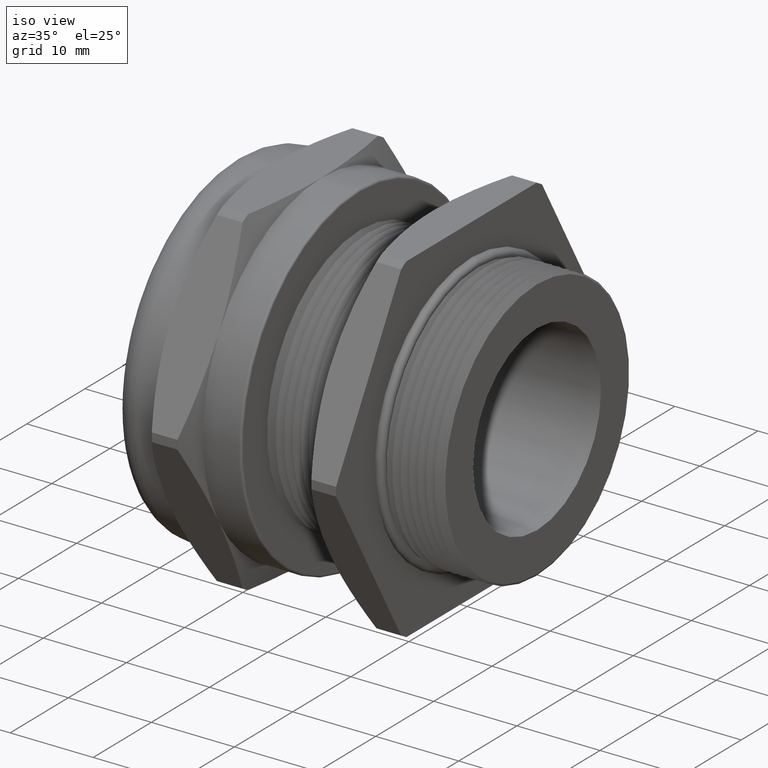
[diagram: clean part render]
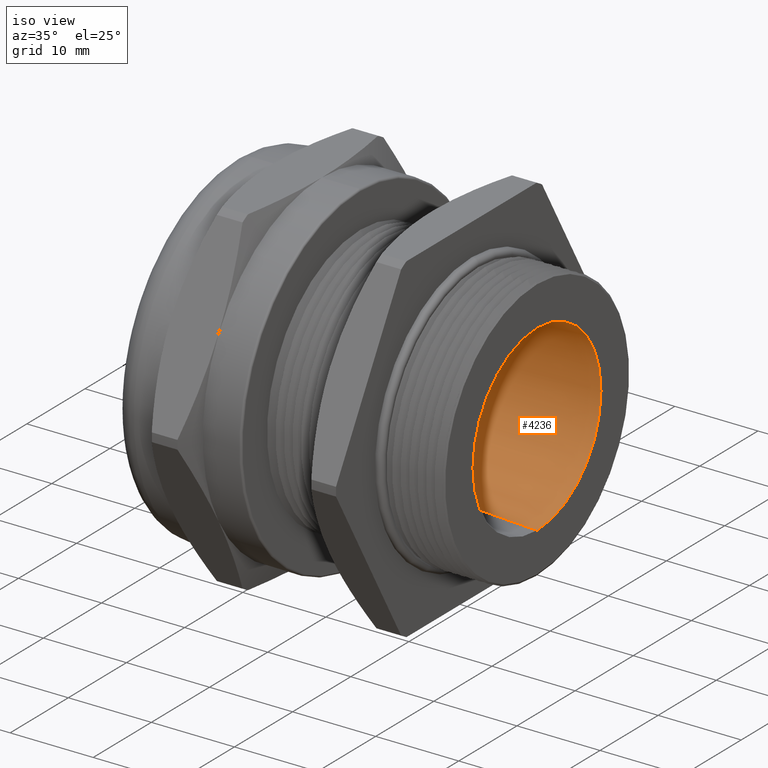
[diagram: same view with one face highlighted and labeled with its STEP entity id]
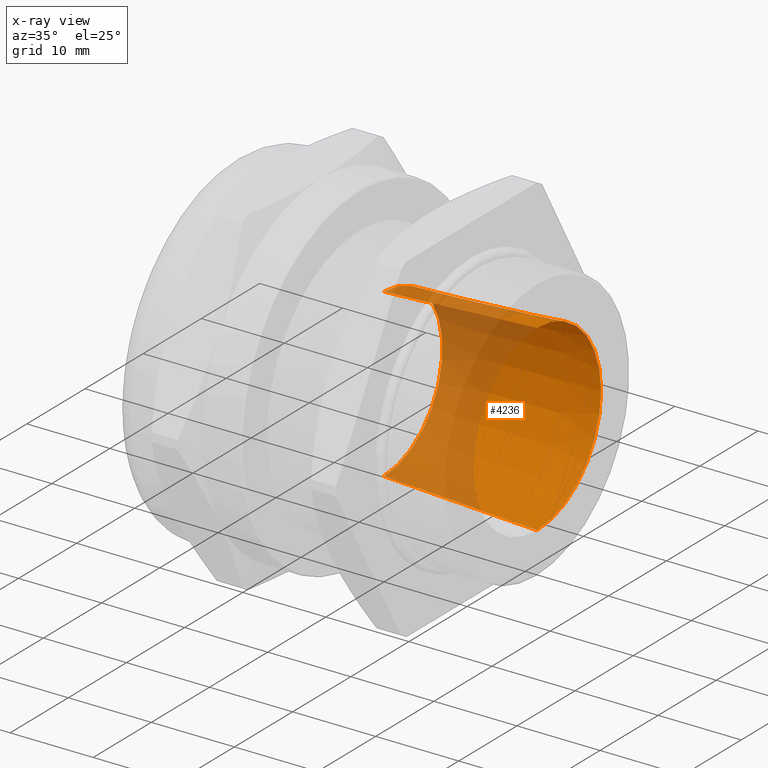
[diagram: x-ray of the same camera — body ghosted, the highlighted face saturated]
A machine part, iso view. The second image highlights one B-rep face of the part: STEP entity #4236.
The next image is the same camera in x-ray: the body ghosted, the highlighted face saturated — about 40% of this face is hidden behind the body in this view.
In plain terms, the highlighted conical surface has half-angle 3 deg.
Its self-contained STEP definition (entity closure, byte-faithful):
#170 = ORIENTED_EDGE ( 'NONE', *, *, #524, .F. ) ;
#179 = ORIENTED_EDGE ( 'NONE', *, *, #1102, .F. ) ;
#180 = ORIENTED_EDGE ( 'NONE', *, *, #181, .T. ) ;
#181 = EDGE_CURVE ( 'NONE', #1145, #1144, #1603, .T. ) ;
#183 = ORIENTED_EDGE ( 'NONE', *, *, #1125, .T. ) ;
#185 = EDGE_LOOP ( 'NONE', ( #179, #180, #183, #170 ) ) ;
#524 = EDGE_CURVE ( 'NONE', #1103, #1106, #2210, .T. ) ;
#1102 = EDGE_CURVE ( 'NONE', #1145, #1103, #3241, .T. ) ;
#1103 = VERTEX_POINT ( 'NONE', #3232 ) ;
#1106 = VERTEX_POINT ( 'NONE', #3291 ) ;
#1125 = EDGE_CURVE ( 'NONE', #1144, #1106, #3318, .T. ) ;
#1144 = VERTEX_POINT ( 'NONE', #3347 ) ;
#1145 = VERTEX_POINT ( 'NONE', #3346 ) ;
#1599 = DIRECTION ( 'NONE',  ( 0.0000000000000000000, 0.0000000000000000000, 1.000000000000000000 ) ) ;
#1600 = DIRECTION ( 'NONE',  ( -1.000000000000000000, 0.0000000000000000000, 0.0000000000000000000 ) ) ;
#1601 = CARTESIAN_POINT ( 'NONE',  ( 0.0000000000000000000, 0.0000000000000000000, 0.0000000000000000000 ) ) ;
#1602 = AXIS2_PLACEMENT_3D ( 'NONE', #1601, #1600, #1599 ) ;
#1603 = CIRCLE ( 'NONE', #1602, 0.3950000000000000200 ) ;
#2206 = DIRECTION ( 'NONE',  ( 0.0000000000000000000, 0.0000000000000000000, 1.000000000000000000 ) ) ;
#2207 = DIRECTION ( 'NONE',  ( -1.000000000000000000, 0.0000000000000000000, 0.0000000000000000000 ) ) ;
#2208 = CARTESIAN_POINT ( 'NONE',  ( 0.7249999999999995300, 0.0000000000000000000, 0.0000000000000000000 ) ) ;
#2209 = AXIS2_PLACEMENT_3D ( 'NONE', #2208, #2207, #2206 ) ;
#2210 = CIRCLE ( 'NONE', #2209, 0.4329956399802052900 ) ;
#3232 = CARTESIAN_POINT ( 'NONE',  ( 0.7249999999999995300, 5.302667245465181700E-017, 0.4329956399802052900 ) ) ;
#3233 = DIRECTION ( 'NONE',  ( 0.9986295347545738300, 6.409306129323784100E-018, 0.05233595624294443800 ) ) ;
#3234 = VECTOR ( 'NONE', #3233, 39.37007874015748900 ) ;
#3235 = CARTESIAN_POINT ( 'NONE',  ( 0.0000000000000000000, 4.837354856632045600E-017, 0.3950000000000000200 ) ) ;
#3241 = LINE ( 'NONE', #3235, #3234 ) ;
#3291 = CARTESIAN_POINT ( 'NONE',  ( 0.7249999999999995300, 0.0000000000000000000, -0.4329956399802052900 ) ) ;
#3315 = DIRECTION ( 'NONE',  ( 0.9986295347545738300, 0.0000000000000000000, -0.05233595624294443800 ) ) ;
#3316 = VECTOR ( 'NONE', #3315, 39.37007874015748900 ) ;
#3317 = CARTESIAN_POINT ( 'NONE',  ( 0.0000000000000000000, 0.0000000000000000000, -0.3950000000000000200 ) ) ;
#3318 = LINE ( 'NONE', #3317, #3316 ) ;
#3346 = CARTESIAN_POINT ( 'NONE',  ( 0.0000000000000000000, 5.070011051048613600E-017, 0.3950000000000000200 ) ) ;
#3347 = CARTESIAN_POINT ( 'NONE',  ( 0.0000000000000000000, 0.0000000000000000000, -0.3950000000000000200 ) ) ;
#4037 = DIRECTION ( 'NONE',  ( 0.0000000000000000000, 0.0000000000000000000, -1.000000000000000000 ) ) ;
#4038 = DIRECTION ( 'NONE',  ( 1.000000000000000000, 0.0000000000000000000, 0.0000000000000000000 ) ) ;
#4039 = CARTESIAN_POINT ( 'NONE',  ( 0.0000000000000000000, 0.0000000000000000000, 0.0000000000000000000 ) ) ;
#4040 = AXIS2_PLACEMENT_3D ( 'NONE', #4039, #4038, #4037 ) ;
#4042 = CONICAL_SURFACE ( 'NONE', #4040, 0.3950000000000000200, 0.05235987755983049400 ) ;
#4043 = FACE_OUTER_BOUND ( 'NONE', #185, .T. ) ;
#4236 = ADVANCED_FACE ( 'NONE', ( #4043 ), #4042, .F. ) ;